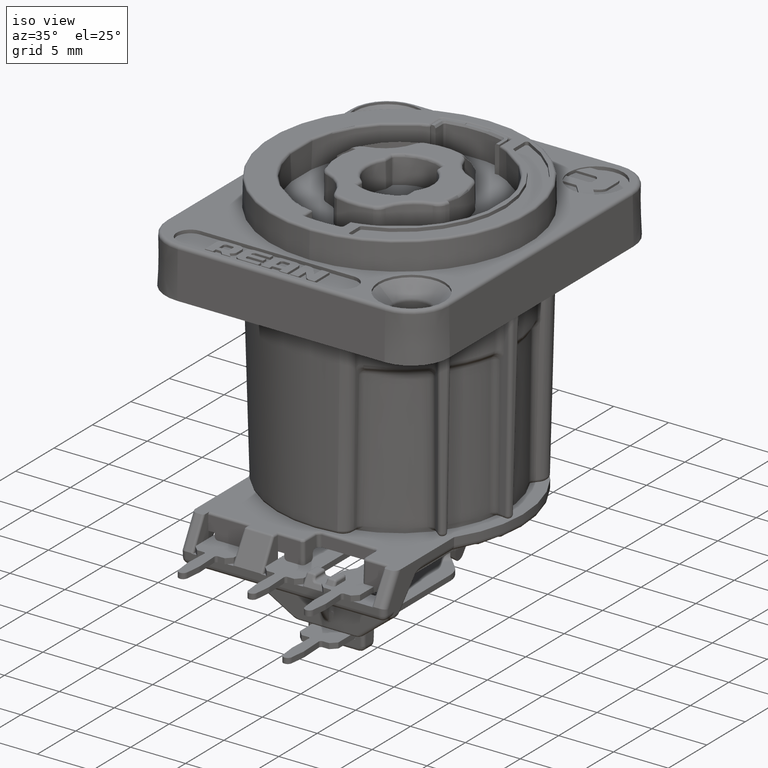
[diagram: clean part render]
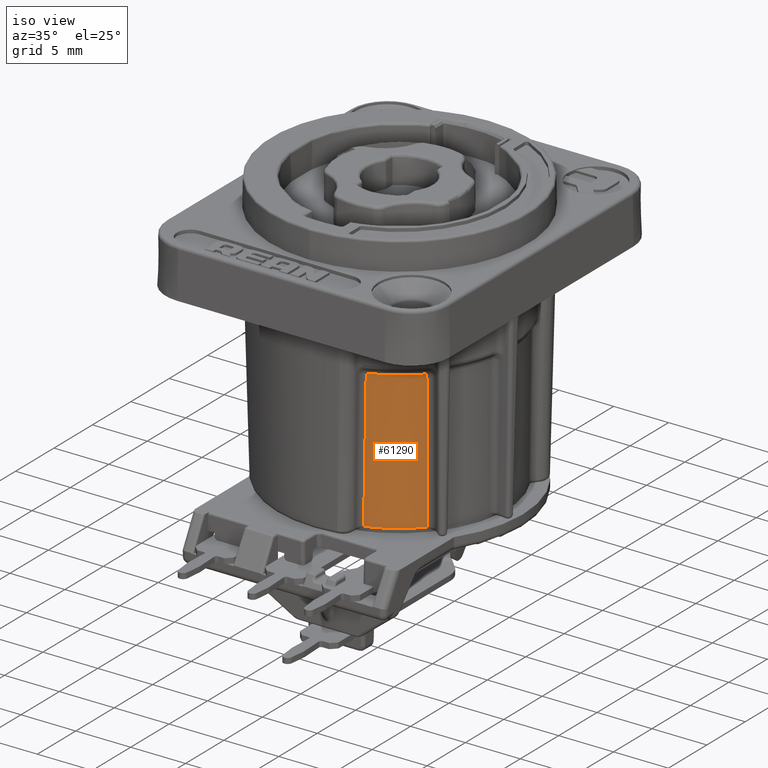
[diagram: same view with one face highlighted and labeled with its STEP entity id]
A machine part, iso view. The second image highlights one B-rep face of the part: STEP entity #61290.
In plain terms, the highlighted conical surface has half-angle 1 deg.
Its self-contained STEP definition (entity closure, byte-faithful):
#22245=CARTESIAN_POINT('',(3.209070661152E0,-9.259625031326E0,
-1.755533232614E1));
#22246=CARTESIAN_POINT('',(3.463055052561E0,-9.171643564922E0,
-1.754994805754E1));
#22247=CARTESIAN_POINT('',(3.961115026957E0,-8.975632773255E0,
-1.755769345225E1));
#22248=CARTESIAN_POINT('',(4.680876255747E0,-8.622211321658E0,
-1.755456516241E1));
#22249=CARTESIAN_POINT('',(5.369580501937E0,-8.211006029780E0,
-1.755546022968E1));
#22250=CARTESIAN_POINT('',(6.022340244090E0,-7.744966574532E0,
-1.755500825044E1));
#22251=CARTESIAN_POINT('',(6.634848619483E0,-7.227142934321E0,
-1.755592110013E1));
#22252=CARTESIAN_POINT('',(7.013664832456E0,-6.849750227209E0,
-1.755378815379E1));
#22253=CARTESIAN_POINT('',(7.195325884290E0,-6.653270370973E0,
-1.755523711134E1));
#22255=CARTESIAN_POINT('',(3.209070661152E0,-9.259625031326E0,
-1.755533232614E1));
#22256=CARTESIAN_POINT('',(3.233083839956E0,-9.268907379670E0,
-1.660214581909E1));
#22257=CARTESIAN_POINT('',(3.285080485706E0,-9.286821799717E0,
-1.464918047505E1));
#22258=CARTESIAN_POINT('',(3.360423810425E0,-9.316133556341E0,
-1.161571053572E1));
#22259=CARTESIAN_POINT('',(3.442509837070E0,-9.346478019378E0,
-8.372687984423E0));
#22260=CARTESIAN_POINT('',(3.501559186179E0,-9.368141799311E0,
-6.029375405920E0));
#22261=CARTESIAN_POINT('',(3.532181109906E0,-9.379243975962E0,
-4.815860466170E0));
#22263=CARTESIAN_POINT('',(0.E0,0.E0,-4.815860466167E0));
#22264=DIRECTION('',(0.E0,0.E0,1.E0));
#22265=DIRECTION('',(3.524321456991E-1,-9.358373697806E-1,0.E0));
#22266=AXIS2_PLACEMENT_3D('',#22263,#22264,#22265);
#22268=CARTESIAN_POINT('',(7.195325884290E0,-6.653270370973E0,
-1.755523711134E1));
#22269=CARTESIAN_POINT('',(7.203081920426E0,-6.669508217716E0,
-1.659740632862E1));
#22270=CARTESIAN_POINT('',(7.218477734091E0,-6.703233271823E0,
-1.463723787894E1));
#22271=CARTESIAN_POINT('',(7.243221493122E0,-6.754545959728E0,
-1.159685051592E1));
#22272=CARTESIAN_POINT('',(7.269299257860E0,-6.809487195129E0,
-8.356194973925E0));
#22273=CARTESIAN_POINT('',(7.288090113943E0,-6.848981805150E0,
-6.022626220124E0));
#22274=CARTESIAN_POINT('',(7.297791585380E0,-6.869407465725E0,
-4.815860466168E0));
#22837=CARTESIAN_POINT('',(3.532181109906E0,-9.379243975962E0,
-4.815860466167E0));
#22838=VERTEX_POINT('',#22837);
#22845=CARTESIAN_POINT('',(7.297791585380E0,-6.869407465725E0,
-4.815860466167E0));
#22846=VERTEX_POINT('',#22845);
#26175=VERTEX_POINT('',#22245);
#26176=VERTEX_POINT('',#22253);
#61278=CARTESIAN_POINT('',(0.E0,0.E0,-1.118554809405E1));
#61279=DIRECTION('',(0.E0,0.E0,1.E0));
#61280=DIRECTION('',(1.E0,0.E0,0.E0));
#61281=AXIS2_PLACEMENT_3D('',#61278,#61279,#61280);
#61282=CONICAL_SURFACE('',#61281,9.911117869440E0,1.E0);
#61283=ORIENTED_EDGE('',*,*,#44541,.F.);
#61284=ORIENTED_EDGE('',*,*,#53440,.T.);
#61285=ORIENTED_EDGE('',*,*,#53388,.T.);
#61287=ORIENTED_EDGE('',*,*,#61286,.F.);
#61288=EDGE_LOOP('',(#61283,#61284,#61285,#61287));
#61289=FACE_OUTER_BOUND('',#61288,.F.);
#61290=ADVANCED_FACE('',(#61289),#61282,.T.);
#22254=B_SPLINE_CURVE_WITH_KNOTS('',3,(#22245,#22246,#22247,#22248,#22249,
#22250,#22251,#22252,#22253),.UNSPECIFIED.,.F.,.F.,(4,1,1,1,1,1,4),(0.E0,
1.666666666667E-1,3.333333333333E-1,5.E-1,6.666666666667E-1,8.333333333333E-1,
1.E0),.UNSPECIFIED.);
#22262=B_SPLINE_CURVE_WITH_KNOTS('',3,(#22255,#22256,#22257,#22258,#22259,
#22260,#22261),.UNSPECIFIED.,.F.,.F.,(4,1,1,1,4),(0.E0,2.5E-1,5.E-1,7.5E-1,
1.E0),.UNSPECIFIED.);
#22267=CIRCLE('',#22266,1.002230118056E1);
#22275=B_SPLINE_CURVE_WITH_KNOTS('',3,(#22268,#22269,#22270,#22271,#22272,
#22273,#22274),.UNSPECIFIED.,.F.,.F.,(4,1,1,1,4),(0.E0,2.5E-1,5.E-1,7.5E-1,
1.E0),.UNSPECIFIED.);
#44541=EDGE_CURVE('',#26175,#26176,#22254,.T.);
#53388=EDGE_CURVE('',#22838,#22846,#22267,.T.);
#53440=EDGE_CURVE('',#26175,#22838,#22262,.T.);
#61286=EDGE_CURVE('',#26176,#22846,#22275,.T.);